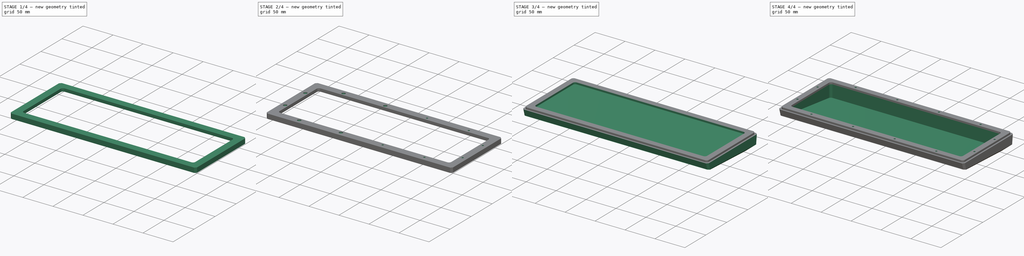
[diagram: build sequence overview — one tinted view per stage of 4, left to right]
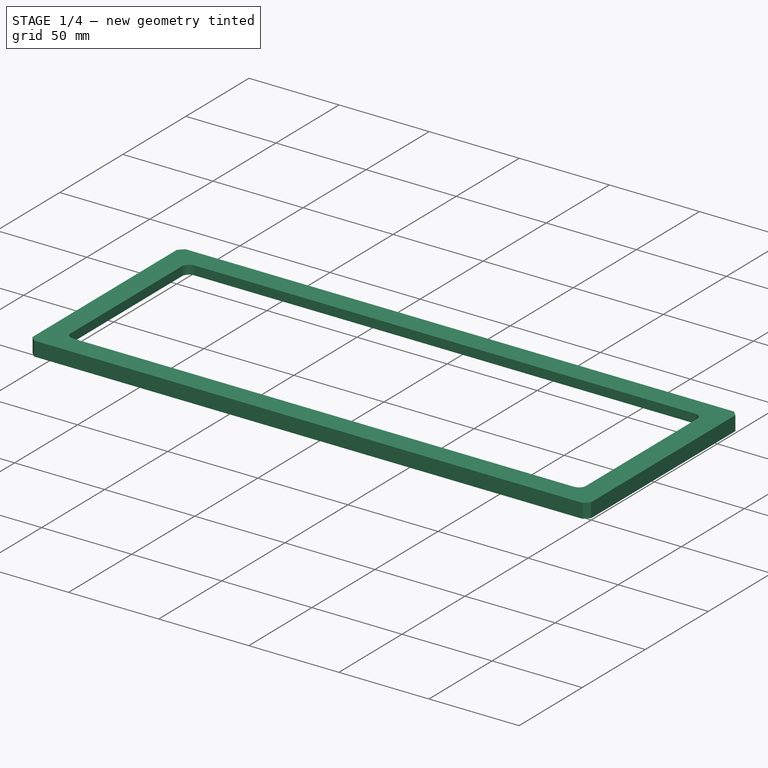
[diagram: stage 1 of 4 — iso view after this stage's code; geometry added in this stage tinted green]
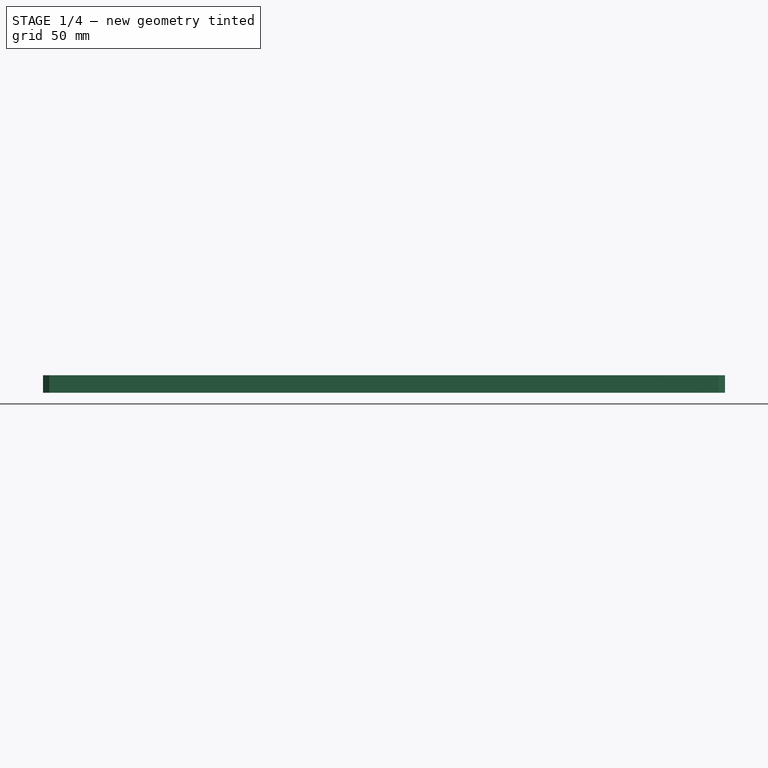
[diagram: stage 1 of 4 — front view after this stage's code; geometry added in this stage tinted green]
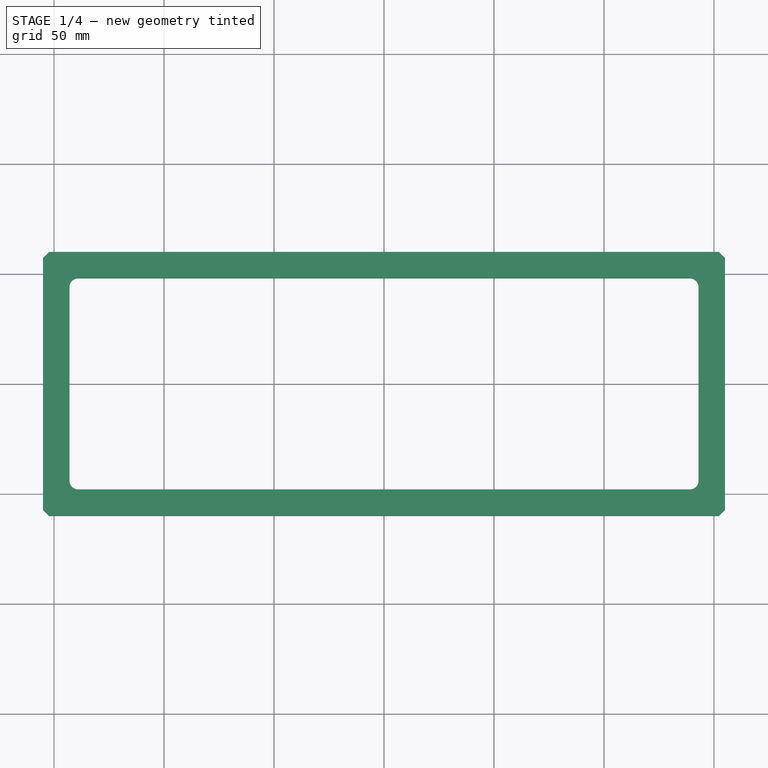
[diagram: stage 1 of 4 — top view after this stage's code; geometry added in this stage tinted green]
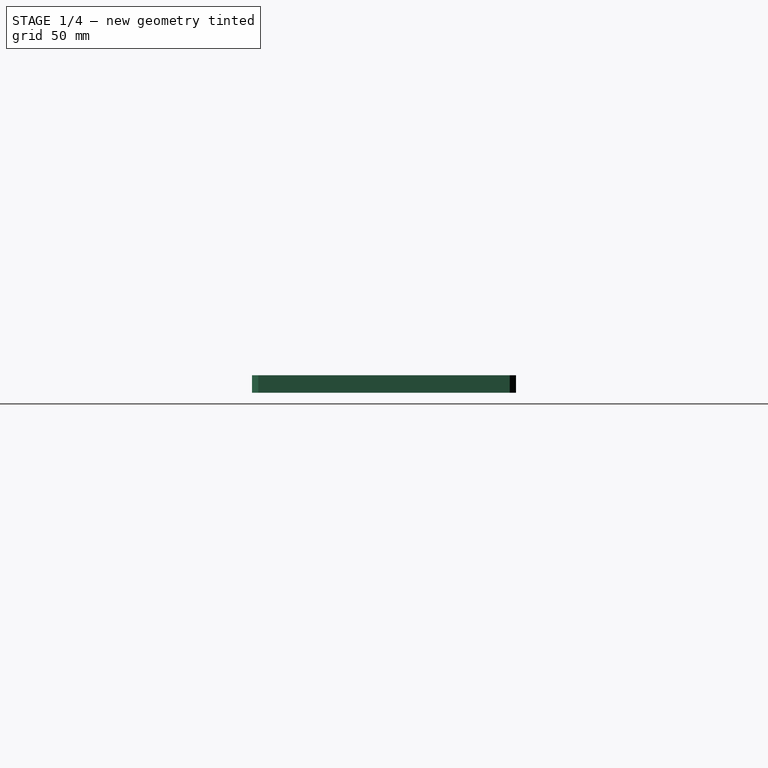
[diagram: stage 1 of 4 — right view after this stage's code; geometry added in this stage tinted green]
FCSTD DOCUMENT  (FreeCAD 0.20R29410 (Git))
Label: Keyboard_Assembly
License: All rights reserved
LicenseURL: http://en.wikipedia.org/wiki/All_rights_reserved
objects: Sketcher::SketchObject×11, PartDesign::Pocket×6, PartDesign::Mirrored×3, PartDesign::Pad×2, PartDesign::Body×2, PartDesign::SubShapeBinder×2, Spreadsheet::Sheet×1, PartDesign::AdditiveLoft×1
note: 36 computed .brp shape members not serialized (recipe doc carries the construction recipe); baked Part::Feature solids carry a one-line shape summary decoded from their .brp

FEATURE [Spreadsheet::Sheet] Spreadsheet  label="Parameters"
  cells = A1=CutoutWidth; B1(CutoutWidth)=286; A2=CutoutLength; B2(CutoutLength)=96; A3=TopEdgeThickness; B3(TopEdgeThickness)=12; A4=BaseTopWidth; B4(BaseWidth)==B1 + B3 * 2; A5=BaseTopLength; B5(BaseLength)==B2 + B3 * 2; A6=BaseHeightFront; B6(BaseHeightFront)=18; A7=BaseHeightRear; B7(BaseHeightRear)=34; A8=BaseOuterChamfer; B8(BaseOuterChamfer)=4; A9=BaseInnerFillet; B9(BaseInnerFillet)=4; A10=TopShellHeight; B10(TopShellHeight)=8; A11=WallThickness; B11(WallThickness)=2.5; A12=TopThickness; B12(TopThickness)=5; A13=ShellScrewDiameter; B13(ShellScrewDiameter)=3; A14=BaseBottomFrontDiff; B14(BaseBottomFrontDiff)=3; A15=BaseBottomRearDiff; B15(BaseBottomRearDiff)=1; A16=BaseBottomWidth; B16(BaseBottomWidth)==B4; A17=BaseBottomLength; B17(BaseBottomLength)==B5 - B14 - B15
FEATURE [Sketcher::SketchObject] Sketch
  FullyConstrained = true
  MapMode = 5
  Support = -> [XY_Plane]
  expr: Constraints[10] = <<Parameters>>.BaseWidth
  expr: Constraints[11] = <<Parameters>>.BaseLength
  expr: Constraints[29] = <<Parameters>>.BaseOuterChamfer
  sketch-geometry (13):
    g0: LineSegment StartX=-155 StartY=60 StartZ=0 EndX=-155 EndY=-60 EndZ=0
    g1: LineSegment StartX=-155 StartY=-60 StartZ=0 EndX=155 EndY=-60 EndZ=0
    g2: LineSegment StartX=155 StartY=-60 StartZ=0 EndX=155 EndY=60 EndZ=0
    g3: LineSegment StartX=155 StartY=60 StartZ=0 EndX=-155 EndY=60 EndZ=0
    g4: GeomPoint X=0 Y=0 Z=0
    g5: LineSegment StartX=-155 StartY=-57.1716 StartZ=0 EndX=-155 EndY=57.1716 EndZ=0
    g6: LineSegment StartX=-155 StartY=57.1716 StartZ=0 EndX=-152.172 EndY=60 EndZ=0
    g7: LineSegment StartX=-152.172 StartY=60 StartZ=0 EndX=152.172 EndY=60 EndZ=0
    g8: LineSegment StartX=152.172 StartY=60 StartZ=0 EndX=155 EndY=57.1716 EndZ=0
    g9: LineSegment StartX=155 StartY=57.1716 StartZ=0 EndX=155 EndY=-57.1716 EndZ=0
    g10: LineSegment StartX=155 StartY=-57.1716 StartZ=0 EndX=152.172 EndY=-60 EndZ=0
    g11: LineSegment StartX=152.172 StartY=-60 StartZ=0 EndX=-152.172 EndY=-60 EndZ=0
    g12: LineSegment StartX=-152.172 StartY=-60 StartZ=0 EndX=-155 EndY=-57.1716 EndZ=0
  constraints (30):
    c: Coincident(g0,g1)
    c: Coincident(g1,g2)
    c: Coincident(g2,g3)
    c: Coincident(g3,g0)
    c: Horizontal(g1)
    c: Horizontal(g3)
    c: Vertical(g0)
    c: Vertical(g2)
    c: Symmetric(g1,g0,g4)
    c: Coincident(g4,g-1)
    c: DistanceX(g3,g3) = 310
    c: DistanceY(g2,g2) = 120
    c: PointOnObject(g5,g0)
    c: Coincident(g5,g6)
    c: PointOnObject(g6,g3)
    c: Coincident(g6,g7)
    c: Coincident(g7,g8)
    c: Coincident(g8,g9)
    c: Coincident(g9,g10)
    c: Coincident(g10,g11)
    c: Coincident(g11,g12)
    c: Coincident(g12,g5)
    c: Symmetric(g10,g7,g-1)
    c: Symmetric(g6,g11,g-1)
    c: Symmetric(g5,g9,g-2)
    c: Symmetric(g8,g5,g-2)
    c: Angle(g7,g8) = 2.35619
    c: Symmetric(g7,g6,g-2)
    c: Symmetric(g9,g8,g-1)
    c: Distance(g8) = 4
FEATURE [PartDesign::Pad] Pad
  Direction = (0,0,1)
  Length = 8
  Length2 = 10
  Profile = -> Sketch
  ReferenceAxis = -> Sketch [N_Axis]
  Type = 0
  expr: Length = <<Parameters>>.TopShellHeight
FEATURE [Sketcher::SketchObject] Sketch001
  FullyConstrained = true
  MapMode = 5
  Placement = pos=(0,0,8) rot=(0,0,1;0rad)
  Support = -> [Pad]
  expr: Constraints[20] = <<Parameters>>.CutoutWidth
  expr: Constraints[21] = <<Parameters>>.CutoutLength
  expr: Constraints[22] = <<Parameters>>.BaseInnerFillet
  sketch-geometry (10):
    g0: ArcOfCircle CenterX=-139 CenterY=44 CenterZ=0 NormalX=0 NormalY=0 NormalZ=1 AngleXU=0 Radius=4 StartAngle=1.5708 EndAngle=3.14159
    g1: LineSegment StartX=-139 StartY=48 StartZ=0 EndX=139 EndY=48 EndZ=0
    g2: ArcOfCircle CenterX=139 CenterY=44 CenterZ=0 NormalX=0 NormalY=0 NormalZ=1 AngleXU=0 Radius=4 StartAngle=4.6e-13 EndAngle=1.5708
    g3: LineSegment StartX=143 StartY=44 StartZ=0 EndX=143 EndY=-44 EndZ=0
    g4: ArcOfCircle CenterX=139 CenterY=-44 CenterZ=0 NormalX=0 NormalY=0 NormalZ=1 AngleXU=0 Radius=4 StartAngle=4.71239 EndAngle=6.28319
    g5: LineSegment StartX=139 StartY=-48 StartZ=0 EndX=-139 EndY=-48 EndZ=0
    g6: ArcOfCircle CenterX=-139 CenterY=-44 CenterZ=0 NormalX=0 NormalY=0 NormalZ=1 AngleXU=0 Radius=4 StartAngle=3.14159 EndAngle=4.71239
    g7: LineSegment StartX=-143 StartY=-44 StartZ=0 EndX=-143 EndY=44 EndZ=0
    g8: GeomPoint X=-143 Y=48 Z=0
    g9: GeomPoint X=143 Y=-48 Z=0
  constraints (23):
    c: Tangent(g0,g1) = 1.5708
    c: Tangent(g1,g2) = 1.5708
    c: Tangent(g2,g3) = 1.5708
    c: Tangent(g3,g4) = 1.5708
    c: Tangent(g4,g5) = 1.5708
    c: Tangent(g5,g6) = 1.5708
    c: Tangent(g6,g7) = 1.5708
    c: Tangent(g7,g0) = 1.5708
    c: Horizontal(g1)
    c: Horizontal(g5)
    c: Vertical(g3)
    c: Vertical(g7)
    c: Equal(g0,g2)
    c: Equal(g2,g4)
    c: Equal(g4,g6)
    c: PointOnObject(g8,g1)
    c: PointOnObject(g8,g7)
    c: PointOnObject(g9,g3)
    c: PointOnObject(g9,g5)
    c: Symmetric(g6,g2,g-1)
    c: DistanceX(g0,g2) = 286
    c: DistanceY(g4,g1) = 96
    c: Radius(g2) = 4
FEATURE [PartDesign::Pocket] Pocket
  BaseFeature = -> Pad
  Direction = (0,0,-1)
  Length = 5
  Length2 = 5
  Profile = -> Sketch001
  ReferenceAxis = -> Sketch001 [N_Axis]
  Type = 1
FEATURE [Sketcher::SketchObject] Sketch002
  FullyConstrained = true
  MapMode = 5
  Placement = pos=(0,0,0) rot=(1,0,0;3.14159rad)
  Support = -> [Pocket]
  expr: Constraints[20] = <<Parameters>>.BaseInnerFillet
  expr: Constraints[21] = <<Parameters>>.BaseLength - <<Parameters>>.WallThickness * 2
  expr: Constraints[22] = <<Parameters>>.BaseWidth - <<Parameters>>.WallThickness * 2
  sketch-geometry (10):
    g0: ArcOfCircle CenterX=-148.5 CenterY=53.5 CenterZ=0 NormalX=0 NormalY=0 NormalZ=1 AngleXU=0 Radius=4 StartAngle=1.5708 EndAngle=3.14159
    g1: LineSegment StartX=-148.5 StartY=57.5 StartZ=0 EndX=148.5 EndY=57.5 EndZ=0
    g2: ArcOfCircle CenterX=148.5 CenterY=53.5 CenterZ=0 NormalX=0 NormalY=0 NormalZ=1 AngleXU=0 Radius=4 StartAngle=1.867e-12 EndAngle=1.5708
    g3: LineSegment StartX=152.5 StartY=53.5 StartZ=0 EndX=152.5 EndY=-53.5 EndZ=0
    g4: ArcOfCircle CenterX=148.5 CenterY=-53.5 CenterZ=0 NormalX=0 NormalY=0 NormalZ=1 AngleXU=0 Radius=4 StartAngle=4.71239 EndAngle=6.28319
    g5: LineSegment StartX=148.5 StartY=-57.5 StartZ=0 EndX=-148.5 EndY=-57.5 EndZ=0
    g6: ArcOfCircle CenterX=-148.5 CenterY=-53.5 CenterZ=0 NormalX=0 NormalY=0 NormalZ=1 AngleXU=0 Radius=4 StartAngle=3.14159 EndAngle=4.71239
    g7: LineSegment StartX=-152.5 StartY=-53.5 StartZ=0 EndX=-152.5 EndY=53.5 EndZ=0
    g8: GeomPoint X=-152.5 Y=57.5 Z=0
    g9: GeomPoint X=152.5 Y=-57.5 Z=0
  constraints (23):
    c: Tangent(g0,g1) = 1.5708
    c: Tangent(g1,g2) = 1.5708
    c: Tangent(g2,g3) = 1.5708
    c: Tangent(g3,g4) = 1.5708
    c: Tangent(g4,g5) = 1.5708
    c: Tangent(g5,g6) = 1.5708
    c: Tangent(g6,g7) = 1.5708
    c: Tangent(g7,g0) = 1.5708
    c: Horizontal(g1)
    c: Horizontal(g5)
    c: Vertical(g3)
    c: Vertical(g7)
    c: Equal(g0,g2)
    c: Equal(g2,g4)
    c: Equal(g4,g6)
    c: PointOnObject(g8,g1)
    c: PointOnObject(g8,g7)
    c: PointOnObject(g9,g3)
    c: PointOnObject(g9,g5)
    c: Symmetric(g2,g6,g-1)
    c: Radius(g0) = 4
    c: DistanceY(g5,g0) = 115
    c: DistanceX(g0,g2) = 305
FEATURE [PartDesign::Pocket] Pocket001
  BaseFeature = -> Pocket
  Direction = (0,0,1)
  Length = 3
  Length2 = 5
  Profile = -> Sketch002
  ReferenceAxis = -> Sketch002 [N_Axis]
  Type = 0
  expr: Length = <<Parameters>>.TopShellHeight - <<Parameters>>.TopThickness
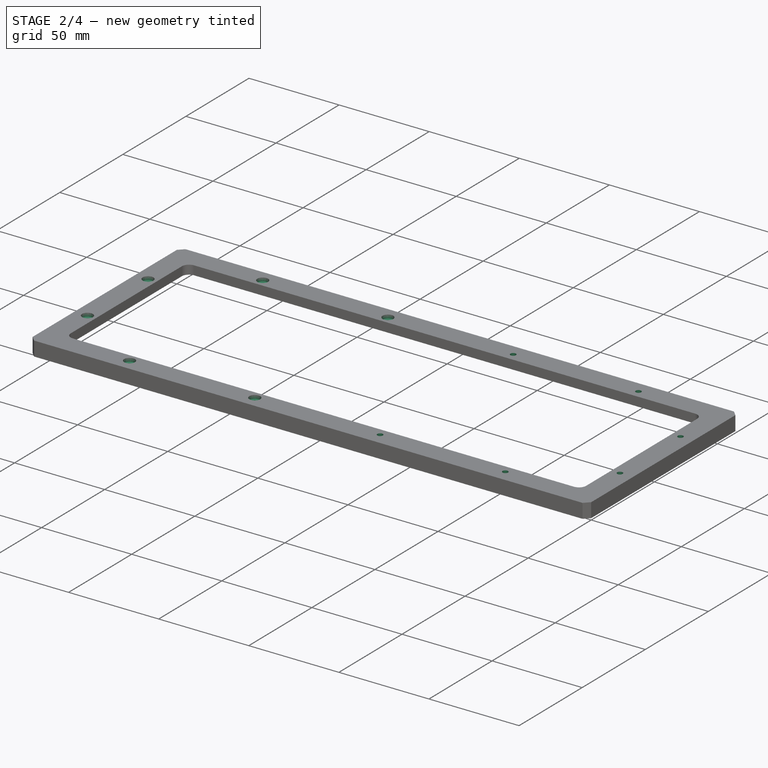
[diagram: stage 2 of 4 — iso view after this stage's code; geometry added in this stage tinted green]
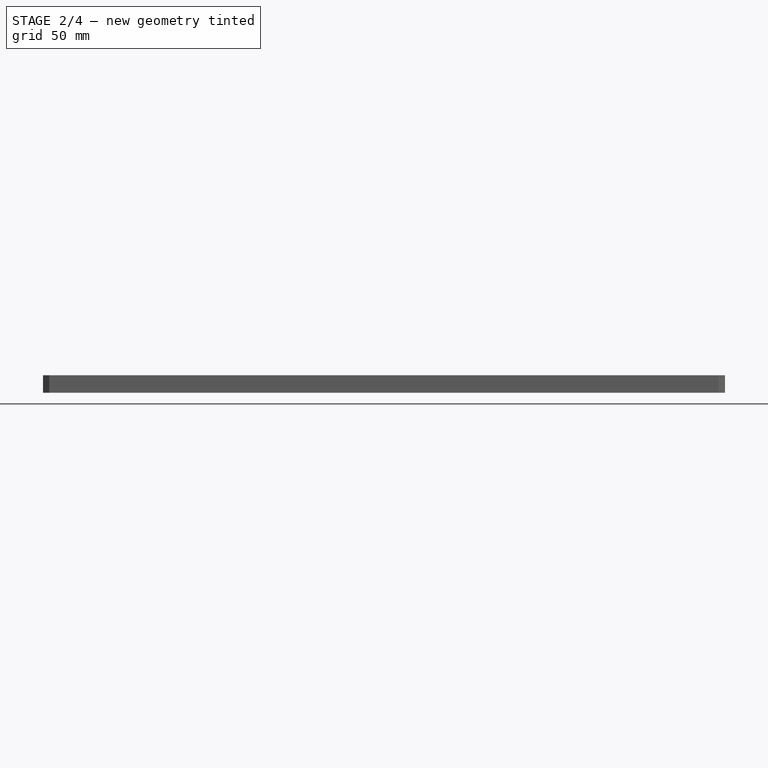
[diagram: stage 2 of 4 — front view after this stage's code; geometry added in this stage tinted green]
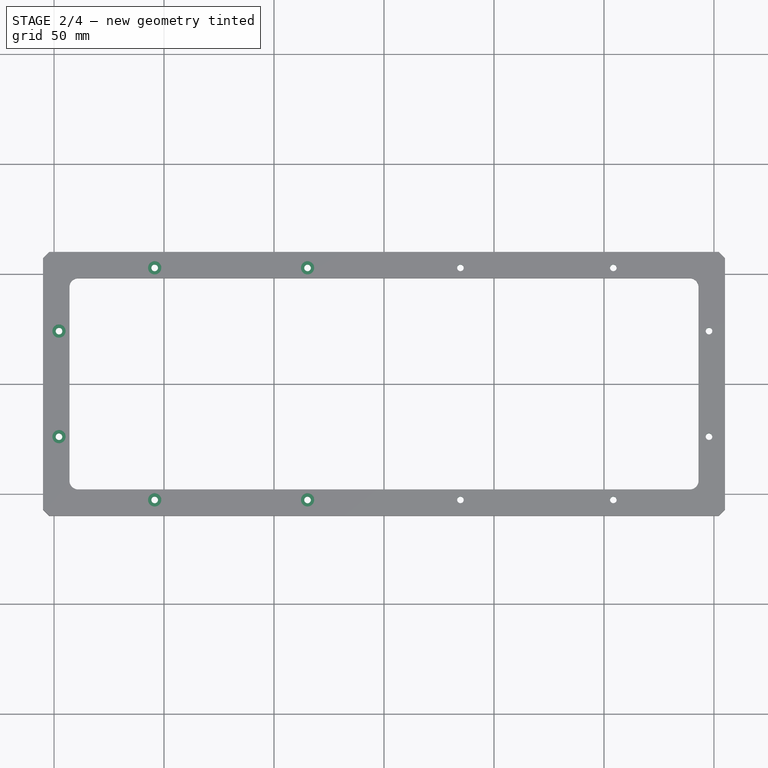
[diagram: stage 2 of 4 — top view after this stage's code; geometry added in this stage tinted green]
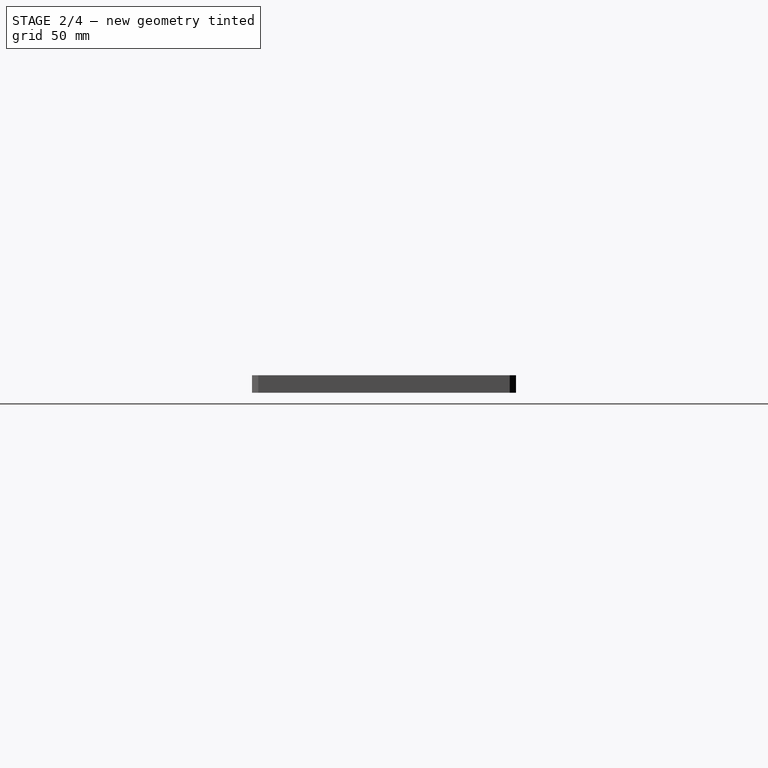
[diagram: stage 2 of 4 — right view after this stage's code; geometry added in this stage tinted green]
FEATURE [Sketcher::SketchObject] Sketch003
  ExternalGeometry = -> [Pocket001]
  FullyConstrained = true
  MapMode = 5
  Placement = pos=(0,0,3) rot=(1,0,0;3.14159rad)
  Support = -> [Pocket001]
  expr: Constraints[2] = <<Parameters>>.ShellScrewDiameter
  sketch-geometry (15):
    g0: Circle CenterX=-147.75 CenterY=24 CenterZ=0 NormalX=0 NormalY=0 NormalZ=1 AngleXU=0 Radius=1.5
    g1: Circle CenterX=-104.25 CenterY=52.75 CenterZ=0 NormalX=0 NormalY=0 NormalZ=1 AngleXU=0 Radius=1.5
    g2: Circle CenterX=-34.75 CenterY=52.75 CenterZ=0 NormalX=0 NormalY=0 NormalZ=1 AngleXU=0 Radius=1.5
    g3: GeomPoint X=-152.5 Y=0 Z=0
    g4: GeomPoint X=-143 Y=0 Z=0
    g5: GeomPoint X=-147.75 Y=0 Z=0
    g6: GeomPoint X=-147.75 Y=48 Z=0
    g7: GeomPoint X=-139 Y=52.75 Z=0
    g8: GeomPoint X=0 Y=48 Z=0
    g9: GeomPoint X=0 Y=57.5 Z=0
    g10: GeomPoint X=0 Y=52.75 Z=0
    g11: GeomPoint X=-69.5 Y=52.75 Z=0
    g12: Circle CenterX=-147.75 CenterY=-24 CenterZ=0 NormalX=0 NormalY=0 NormalZ=1 AngleXU=0 Radius=1.5
    g13: Circle CenterX=-104.25 CenterY=-52.75 CenterZ=0 NormalX=0 NormalY=0 NormalZ=1 AngleXU=0 Radius=1.5
    g14: Circle CenterX=-34.75 CenterY=-52.75 CenterZ=0 NormalX=0 NormalY=0 NormalZ=1 AngleXU=0 Radius=1.5
  constraints (27):
    c: Equal(g2,g1)
    c: Equal(g2,g0)
    c: Diameter(g2) = 3
    c: PointOnObject(g3,g-4)
    c: PointOnObject(g4,g-3)
    c: PointOnObject(g4,g-1)
    c: PointOnObject(g3,g-1)
    c: Symmetric(g4,g3,g5)
    c: Vertical(g0,g5)
    c: Horizontal(g-5,g6)
    c: Symmetric(g5,g6,g0)
    c: PointOnObject(g8,g-5)
    c: PointOnObject(g9,g-6)
    c: PointOnObject(g10,g-2)
    c: PointOnObject(g9,g-2)
    c: Symmetric(g9,g8,g10)
    c: Vertical(g7,g-5)
    c: Horizontal(g7,g10)
    c: Symmetric(g7,g10,g11)
    c: Symmetric(g7,g11,g1)
    c: Symmetric(g10,g11,g2)
    c: Equal(g14,g13)
    c: Equal(g14,g12)
    c: Equal(g12,g0)
    c: Symmetric(g12,g0,g-1)
    c: Symmetric(g13,g1,g-1)
    c: Symmetric(g14,g2,g-1)
FEATURE [PartDesign::Pocket] Pocket002
  BaseFeature = -> Pocket001
  Direction = (0,0,1)
  Length = 5
  Length2 = 5
  Profile = -> Sketch003
  ReferenceAxis = -> Sketch003 [N_Axis]
  Type = 1
FEATURE [PartDesign::Mirrored] Mirrored
  BaseFeature = -> Pocket002
  MirrorPlane = -> Sketch003 [V_Axis]
  Originals = -> [Pocket002]
FEATURE [Sketcher::SketchObject] Sketch004
  ExternalGeometry = -> [Mirrored]
  FullyConstrained = true
  MapMode = 5
  Placement = pos=(0,0,8) rot=(0,0,1;0rad)
  Support = -> [Mirrored]
  expr: Constraints[11] = <<Parameters>>.ShellScrewDiameter + 3
  sketch-geometry (6):
    g0: Circle CenterX=-104.25 CenterY=52.75 CenterZ=0 NormalX=0 NormalY=0 NormalZ=1 AngleXU=0 Radius=3
    g1: Circle CenterX=-34.75 CenterY=52.75 CenterZ=0 NormalX=0 NormalY=0 NormalZ=1 AngleXU=0 Radius=3
    g2: Circle CenterX=-147.75 CenterY=24 CenterZ=0 NormalX=0 NormalY=0 NormalZ=1 AngleXU=0 Radius=3
    g3: Circle CenterX=-147.75 CenterY=-24 CenterZ=0 NormalX=0 NormalY=0 NormalZ=1 AngleXU=0 Radius=3
    g4: Circle CenterX=-104.25 CenterY=-52.75 CenterZ=0 NormalX=0 NormalY=0 NormalZ=1 AngleXU=0 Radius=3
    g5: Circle CenterX=-34.75 CenterY=-52.75 CenterZ=0 NormalX=0 NormalY=0 NormalZ=1 AngleXU=0 Radius=3
  constraints (9):
    c: Coincident(g0,g-3)
    c: Coincident(g1,g-4)
    c: Coincident(g2,g-5)
    c: Coincident(g3,g-6)
    c: Coincident(g4,g-7)
    c: Coincident(g5,g-8)
    c: Equal(g1,g0)
    c: Equal(g1, g2-g5) x4
    c: Diameter(g1) = 6
FEATURE [PartDesign::Pocket] Pocket003
  BaseFeature = -> Mirrored
  Direction = (0,0,-1)
  Length = 2
  Length2 = 5
  Profile = -> Sketch004
  ReferenceAxis = -> Sketch004 [N_Axis]
  Type = 0
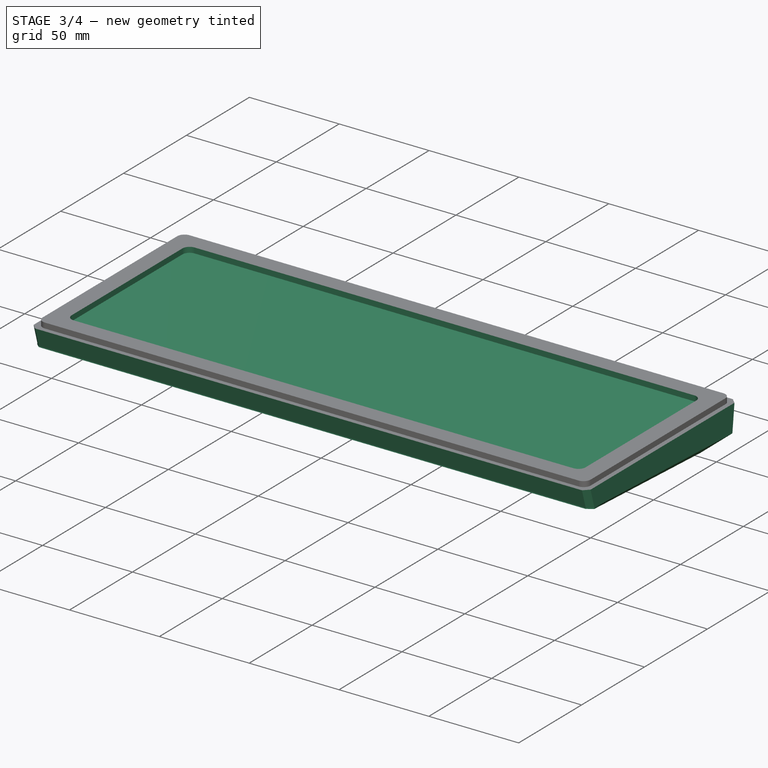
[diagram: stage 3 of 4 — iso view after this stage's code; geometry added in this stage tinted green]
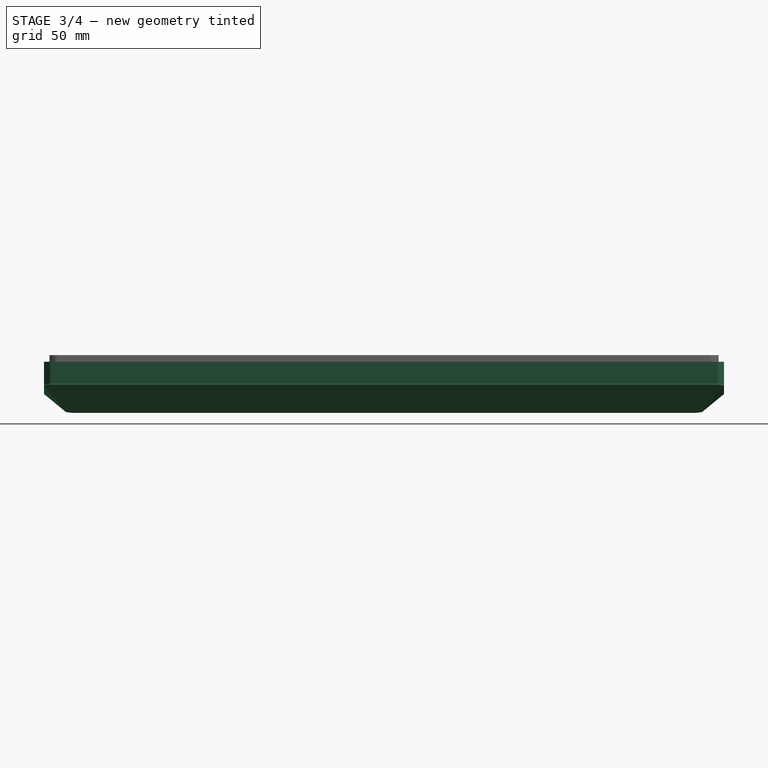
[diagram: stage 3 of 4 — front view after this stage's code; geometry added in this stage tinted green]
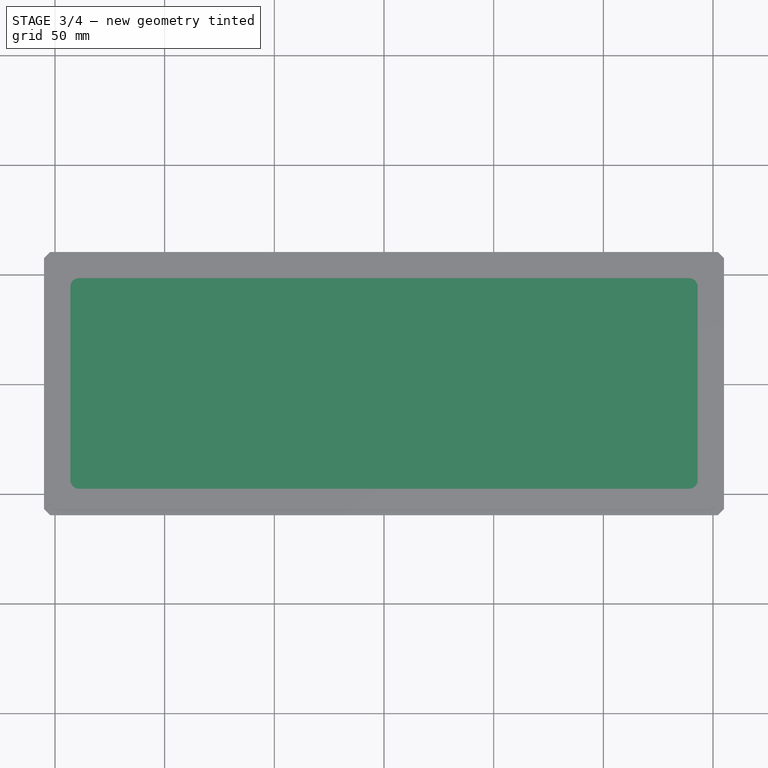
[diagram: stage 3 of 4 — top view after this stage's code; geometry added in this stage tinted green]
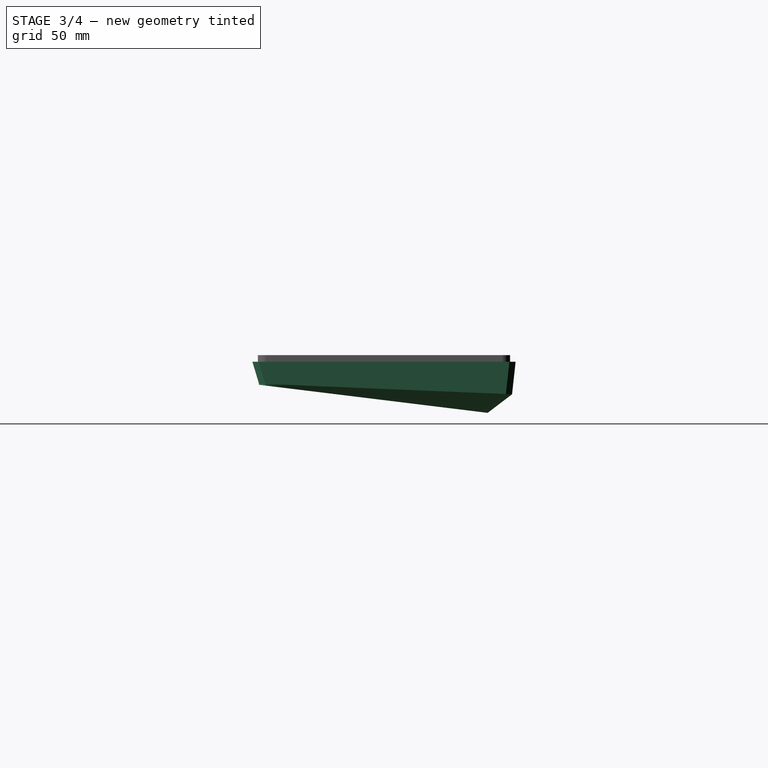
[diagram: stage 3 of 4 — right view after this stage's code; geometry added in this stage tinted green]
FEATURE [PartDesign::Mirrored] Mirrored001
  BaseFeature = -> Pocket003
  MirrorPlane = -> Sketch004 [V_Axis]
  Originals = -> [Pocket003]
FEATURE [PartDesign::Body] Body  label="TopShell"
  Group = -> [Sketch,Pad,Sketch001,Pocket,Sketch002,Pocket001,Sketch003,Pocket002,Mirrored,Sketch004,Pocket003,Mirrored001]
  Origin = -> Origin
  Tip = -> Mirrored001
FEATURE [PartDesign::SubShapeBinder] Binder  label="ScrewsBinder"
  BindCopyOnChange = 0
  BindMode = 0
  ClaimChildren = false
  Context = -> Body001 [Binder.]
  Fuse = false
  MakeFace = true
  OffsetFill = false
  OffsetIntersection = false
  OffsetJoinType = 0
  OffsetOpenResult = false
  PartialLoad = false
  Relative = true
  Support = -> [Body[Mirrored001.Face39]]
  _Version = 2
FEATURE [PartDesign::SubShapeBinder] Binder001  label="WallBinder"
  BindCopyOnChange = 0
  BindMode = 0
  ClaimChildren = false
  Context = -> Body001 [Binder001.]
  Fuse = false
  MakeFace = true
  OffsetFill = false
  OffsetIntersection = false
  OffsetJoinType = 0
  OffsetOpenResult = false
  PartialLoad = false
  Relative = true
  Support = -> [Body[Mirrored001.Face4]]
  _Version = 2
FEATURE [Sketcher::SketchObject] Sketch005  label="TopOuterWall"
  ExternalGeometry = -> [Binder001]
  FullyConstrained = true
  MapMode = 5
  Support = -> [XY_Plane001]
  sketch-geometry (8):
    g0: LineSegment StartX=-155 StartY=57.1716 StartZ=0 EndX=-152.172 EndY=60 EndZ=0
    g1: LineSegment StartX=-152.172 StartY=60 StartZ=0 EndX=152.172 EndY=60 EndZ=0
    g2: LineSegment StartX=152.172 StartY=60 StartZ=0 EndX=155 EndY=57.1716 EndZ=0
    g3: LineSegment StartX=155 StartY=57.1716 StartZ=0 EndX=155 EndY=-57.1716 EndZ=0
    g4: LineSegment StartX=155 StartY=-57.1716 StartZ=0 EndX=152.172 EndY=-60 EndZ=0
    g5: LineSegment StartX=152.172 StartY=-60 StartZ=0 EndX=-152.172 EndY=-60 EndZ=0
    g6: LineSegment StartX=-152.172 StartY=-60 StartZ=0 EndX=-155 EndY=-57.1716 EndZ=0
    g7: LineSegment StartX=-155 StartY=-57.1716 StartZ=0 EndX=-155 EndY=57.1716 EndZ=0
  constraints (16):
    c: Coincident(g-3,g0)
    c: Coincident(g0,g-4)
    c: Coincident(g0,g1)
    c: Coincident(g1,g-4)
    c: Coincident(g1,g2)
    c: Coincident(g2,g-5)
    c: Coincident(g2,g3)
    c: Coincident(g3,g-5)
    c: Coincident(g3,g4)
    c: Coincident(g4,g-6)
    c: Coincident(g4,g5)
    c: Coincident(g5,g-6)
    c: Coincident(g5,g6)
    c: Coincident(g6,g-3)
    c: Coincident(g6,g7)
    c: Coincident(g7,g0)
FEATURE [Sketcher::SketchObject] Sketch006
  AttachmentOffset = pos=(0,-57,-10) rot=(1,0,0;-0.041888rad)
  ExternalGeometry = -> [Sketch005]
  FullyConstrained = true
  MapMode = 5
  Placement = pos=(0,-57,-10) rot=(1,0,0;6.2413rad)
  Support = -> [XY_Plane001]
  expr: .AttachmentOffset.Base.y = -<<Parameters>>.BaseLength / 2 + <<Parameters>>.BaseBottomFrontDiff
  expr: Constraints[17] = <<Parameters>>.BaseBottomRearDiff
  sketch-geometry (8):
    g0: LineSegment StartX=-155 StartY=112.65 StartZ=0 EndX=-155 EndY=2.82843 EndZ=0
    g1: LineSegment StartX=-155 StartY=2.82843 StartZ=0 EndX=-152.172 EndY=0 EndZ=0
    g2: LineSegment StartX=-152.172 StartY=0 StartZ=0 EndX=152.172 EndY=0 EndZ=0
    g3: LineSegment StartX=152.172 StartY=0 StartZ=0 EndX=155 EndY=2.82843 EndZ=0
    g4: LineSegment StartX=155 StartY=2.82843 StartZ=0 EndX=155 EndY=112.65 EndZ=0
    g5: LineSegment StartX=155 StartY=112.65 StartZ=0 EndX=152.172 EndY=115.479 EndZ=0
    g6: LineSegment StartX=152.172 StartY=115.479 StartZ=0 EndX=-152.172 EndY=115.479 EndZ=0
    g7: LineSegment StartX=-152.172 StartY=115.479 StartZ=0 EndX=-155 EndY=112.65 EndZ=0
  constraints (22):
    c: Vertical(g0)
    c: Coincident(g0,g1)
    c: Coincident(g1,g2)
    c: Horizontal(g2)
    c: Coincident(g2,g3)
    c: Coincident(g3,g4)
    c: Coincident(g4,g5)
    c: Coincident(g5,g6)
    c: Horizontal(g6)
    c: Coincident(g6,g7)
    c: Coincident(g7,g0)
    c: PointOnObject(g1,g-1)
    c: Vertical(g1,g6)
    c: Vertical(g2,g5)
    c: Vertical(g6,g-5)
    c: Vertical(g5,g-5)
    c: PointOnObject(g0,g-4)
    c: DistanceY(g6,g-5) = 1
    c: Symmetric(g4,g0,g-2)
    c: Symmetric(g0,g3,g-2)
    c: Angle(g6,g5) = 2.35619
    c: Angle(g2,g1) = 2.35619
FEATURE [Sketcher::SketchObject] Sketch007
  AttachmentOffset = pos=(0,-57,-10.5) rot=(1,0,0;-0.122173rad)
  ExternalGeometry = -> [Sketch006]
  FullyConstrained = true
  MapMode = 5
  Placement = pos=(0,-57,-10.5) rot=(1,0,0;6.16101rad)
  Support = -> [XY_Plane001]
  sketch-geometry (8):
    g0: LineSegment StartX=-155 StartY=2.75838 StartZ=0 EndX=-152.172 EndY=-0.0609347 EndZ=0
    g1: LineSegment StartX=-152.172 StartY=-0.0609347 StartZ=0 EndX=152.172 EndY=-0.0609347 EndZ=0
    g2: LineSegment StartX=152.172 StartY=-0.0609347 StartZ=0 EndX=155 EndY=2.75838 EndZ=0
    g3: LineSegment StartX=155 StartY=2.75838 StartZ=0 EndX=145 EndY=102.226 EndZ=0
    g4: LineSegment StartX=145 StartY=102.226 StartZ=0 EndX=142.172 EndY=105.046 EndZ=0
    g5: LineSegment StartX=142.172 StartY=105.046 StartZ=0 EndX=-142.172 EndY=105.046 EndZ=0
    g6: LineSegment StartX=-142.172 StartY=105.046 StartZ=0 EndX=-145 EndY=102.226 EndZ=0
    g7: LineSegment StartX=-145 StartY=102.226 StartZ=0 EndX=-155 EndY=2.75838 EndZ=0
  constraints (18):
    c: Coincident(g-4,g0)
    c: Coincident(g0,g-3)
    c: Coincident(g0,g1)
    c: Coincident(g1,g-3)
    c: Coincident(g1,g2)
    c: Coincident(g2,g-6)
    c: Coincident(g2,g3)
    c: Coincident(g3,g4)
    c: Coincident(g4,g5)
    c: Coincident(g5,g6)
    c: Coincident(g6,g7)
    c: Coincident(g7,g0)
    c: DistanceY(g6,g-4) = 10
    c: DistanceX(g-4,g6) = 10
    c: DistanceX(g-5,g5) = 10
    c: DistanceY(g5,g-5) = 10
    c: Symmetric(g6,g3,g-2)
    c: Symmetric(g4,g5,g-2)
FEATURE [PartDesign::AdditiveLoft] AdditiveLoft
  Closed = false
  Profile = -> Sketch005
  Ruled = true
  Sections = -> [Sketch006,Sketch007]
FEATURE [Sketcher::SketchObject] Sketch008
  ExternalGeometry = -> [Binder]
  FullyConstrained = false
  MapMode = 5
  Support = -> [AdditiveLoft]
  expr: Constraints[18] = <<Parameters>>.BaseInnerFillet
  sketch-geometry (20):
    g0: ArcOfCircle CenterX=-148.5 CenterY=53.5 CenterZ=0 NormalX=0 NormalY=0 NormalZ=1 AngleXU=0 Radius=4 StartAngle=1.5708 EndAngle=3.14159
    g1: LineSegment StartX=-148.5 StartY=57.5 StartZ=0 EndX=148.5 EndY=57.5 EndZ=0
    g2: ArcOfCircle CenterX=148.5 CenterY=53.5 CenterZ=0 NormalX=0 NormalY=0 NormalZ=1 AngleXU=0 Radius=4 StartAngle=4e-16 EndAngle=1.5708
    g3: LineSegment StartX=152.5 StartY=53.5 StartZ=0 EndX=152.5 EndY=-53.5 EndZ=0
    g4: ArcOfCircle CenterX=148.5 CenterY=-53.5 CenterZ=0 NormalX=0 NormalY=0 NormalZ=1 AngleXU=0 Radius=4 StartAngle=4.71239 EndAngle=6.28319
    g5: LineSegment StartX=148.5 StartY=-57.5 StartZ=0 EndX=-148.5 EndY=-57.5 EndZ=0
    g6: ArcOfCircle CenterX=-148.5 CenterY=-53.5 CenterZ=0 NormalX=0 NormalY=0 NormalZ=1 AngleXU=0 Radius=4 StartAngle=3.14159 EndAngle=4.71239
    g7: LineSegment StartX=-152.5 StartY=-53.5 StartZ=0 EndX=-152.5 EndY=53.5 EndZ=0
    g8: GeomPoint X=-152.5 Y=57.5 Z=0
    g9: GeomPoint X=152.5 Y=-57.5 Z=0
    g10: ArcOfCircle CenterX=-139 CenterY=44 CenterZ=0 NormalX=0 NormalY=0 NormalZ=1 AngleXU=0 Radius=4 StartAngle=1.5708 EndAngle=3.14159
    g11: LineSegment StartX=-139 StartY=48 StartZ=0 EndX=139 EndY=48 EndZ=0
    g12: ArcOfCircle CenterX=139 CenterY=44 CenterZ=0 NormalX=0 NormalY=0 NormalZ=1 AngleXU=0 Radius=4 StartAngle=-9e-16 EndAngle=1.5708
    g13: LineSegment StartX=143 StartY=44 StartZ=0 EndX=143 EndY=-44 EndZ=0
    g14: ArcOfCircle CenterX=139 CenterY=-44 CenterZ=0 NormalX=0 NormalY=0 NormalZ=1 AngleXU=0 Radius=4 StartAngle=4.71239 EndAngle=6.28319
    g15: LineSegment StartX=139 StartY=-48 StartZ=0 EndX=-139 EndY=-48 EndZ=0
    g16: ArcOfCircle CenterX=-139 CenterY=-44 CenterZ=0 NormalX=0 NormalY=0 NormalZ=1 AngleXU=0 Radius=4 StartAngle=3.14159 EndAngle=4.71239
    g17: LineSegment StartX=-143 StartY=-44 StartZ=0 EndX=-143 EndY=44 EndZ=0
    g18: GeomPoint X=-143 Y=48 Z=0
    g19: GeomPoint X=143 Y=-48 Z=0
  constraints (42):
    c: Tangent(g0,g1) = 1.5708
    c: Tangent(g1,g2) = 1.5708
    c: Tangent(g2,g3) = 1.5708
    c: Tangent(g3,g4) = 1.5708
    c: Tangent(g4,g5) = 1.5708
    c: Tangent(g5,g6) = 1.5708
    c: Tangent(g6,g7) = 1.5708
    c: Tangent(g7,g0) = 1.5708
    c: Horizontal(g1)
    c: Horizontal(g5)
    c: Vertical(g3)
    c: Vertical(g7)
    c: Equal(g0,g2)
    c: Equal(g2,g4)
    c: Equal(g4,g6)
    c: PointOnObject(g9,g3)
    c: PointOnObject(g9,g5)
    c: Symmetric(g0,g4,g-1)
    c: Radius(g0) = 4
    c: Coincident(g0,g-4)
    c: Tangent(g10,g11) = 1.5708
    c: Tangent(g11,g12) = 1.5708
    c: Tangent(g12,g13) = 1.5708
    c: Tangent(g13,g14) = 1.5708
    c: Tangent(g14,g15) = 1.5708
    c: Tangent(g15,g16) = 1.5708
    c: Tangent(g16,g17) = 1.5708
    c: Tangent(g17,g10) = 1.5708
    c: Horizontal(g11)
    c: Horizontal(g15)
    c: Vertical(g13)
    c: Vertical(g17)
    c: Equal(g10,g12)
    c: Equal(g12,g14)
    c: Equal(g14,g16)
    c: PointOnObject(g18,g11)
    c: PointOnObject(g18,g17)
    c: PointOnObject(g19,g13)
    c: PointOnObject(g19,g15)
    c: Equal(g10,g0)
    c: Symmetric(g16,g12,g-1)
    c: Coincident(g10,g-8)
FEATURE [PartDesign::Pad] Pad001
  BaseFeature = -> AdditiveLoft
  Direction = (0,0,1)
  Length = 3
  Length2 = 10
  Profile = -> Sketch008
  ReferenceAxis = -> Sketch008 [N_Axis]
  Type = 0
  expr: Length = <<Parameters>>.TopShellHeight - <<Parameters>>.TopThickness
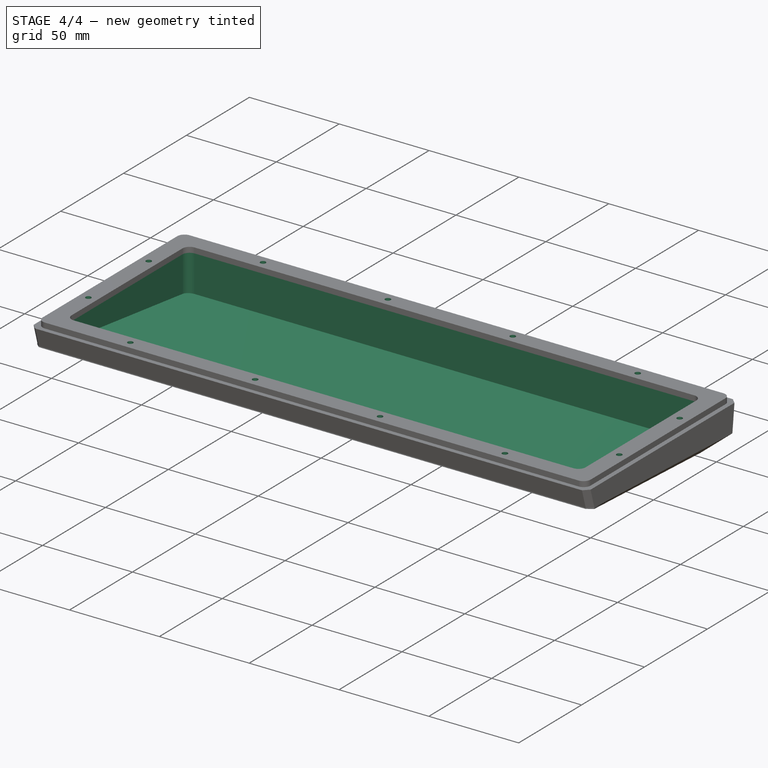
[diagram: stage 4 of 4 — iso view after this stage's code; geometry added in this stage tinted green]
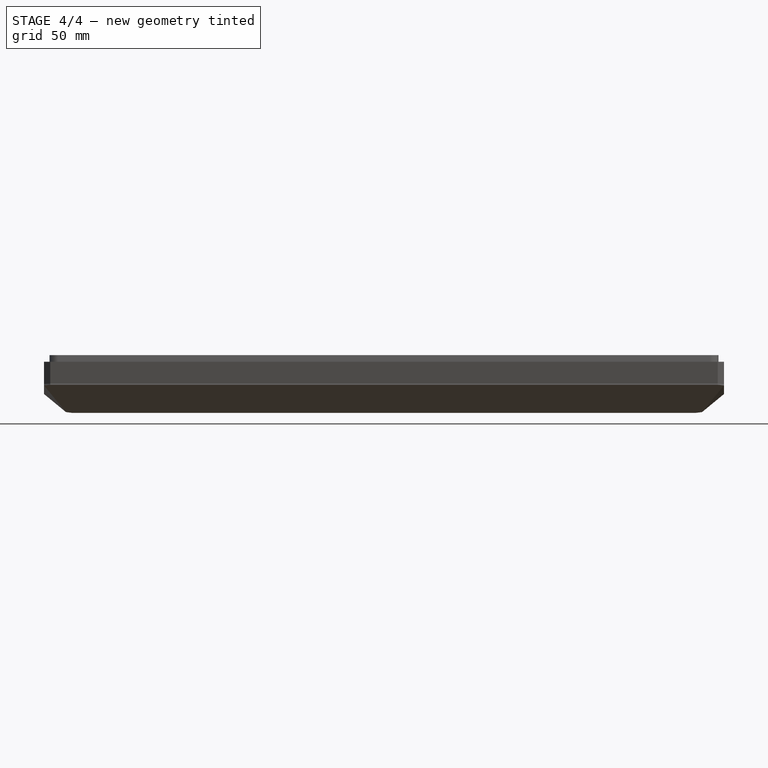
[diagram: stage 4 of 4 — front view after this stage's code; geometry added in this stage tinted green]
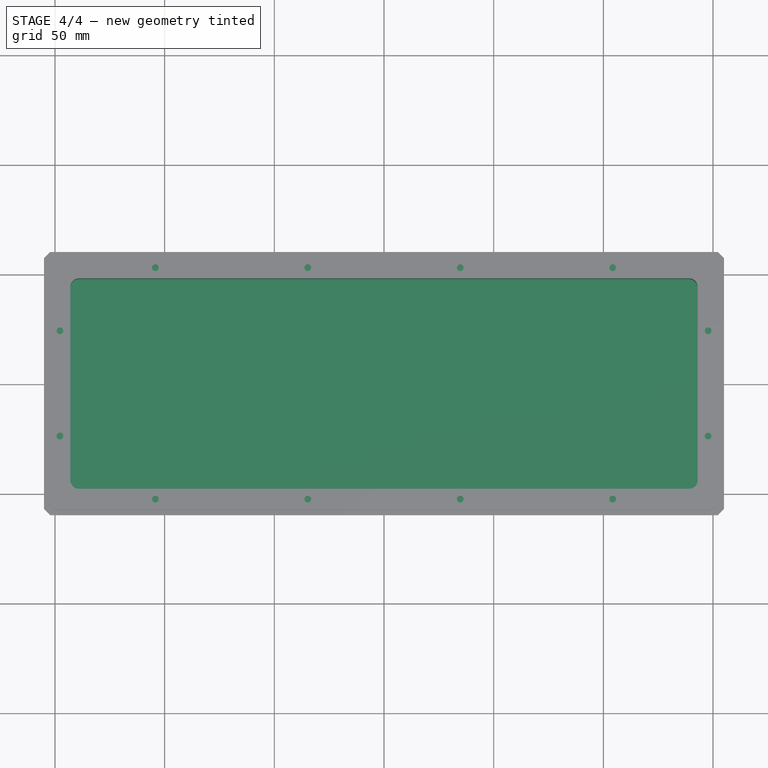
[diagram: stage 4 of 4 — top view after this stage's code; geometry added in this stage tinted green]
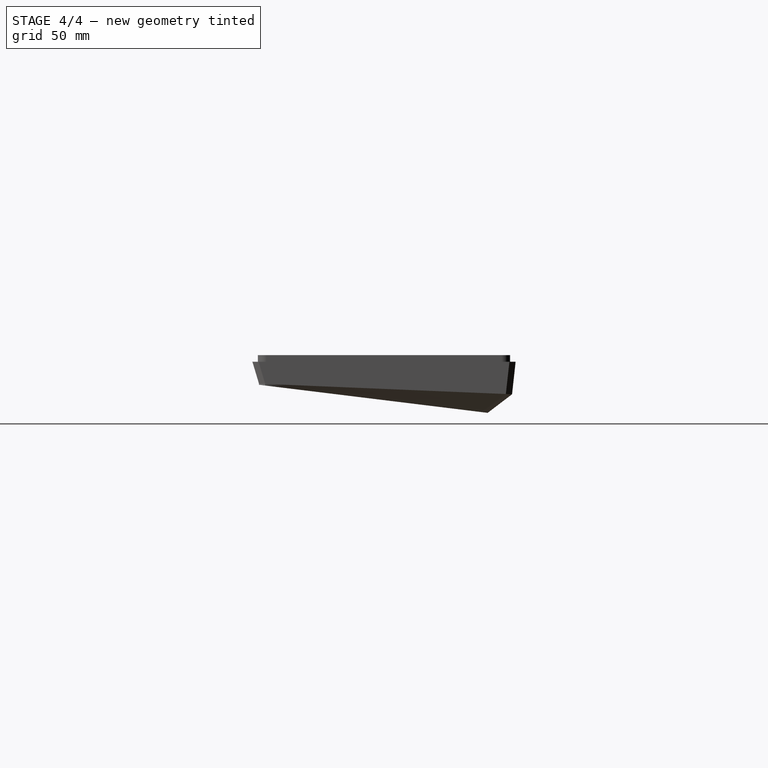
[diagram: stage 4 of 4 — right view after this stage's code; geometry added in this stage tinted green]
FEATURE [Sketcher::SketchObject] Sketch009
  ExternalGeometry = -> [Binder]
  FullyConstrained = true
  MapMode = 5
  Placement = pos=(0,0,3) rot=(0,0,1;0rad)
  Support = -> [Pad001]
  sketch-geometry (6):
    g0: Circle CenterX=-104.25 CenterY=52.75 CenterZ=0 NormalX=0 NormalY=0 NormalZ=1 AngleXU=0 Radius=1.5
    g1: Circle CenterX=-34.75 CenterY=52.75 CenterZ=0 NormalX=0 NormalY=0 NormalZ=1 AngleXU=0 Radius=1.5
    g2: Circle CenterX=-147.75 CenterY=24 CenterZ=0 NormalX=0 NormalY=0 NormalZ=1 AngleXU=0 Radius=1.5
    g3: Circle CenterX=-147.75 CenterY=-24 CenterZ=0 NormalX=0 NormalY=0 NormalZ=1 AngleXU=0 Radius=1.5
    g4: Circle CenterX=-104.25 CenterY=-52.75 CenterZ=0 NormalX=0 NormalY=0 NormalZ=1 AngleXU=0 Radius=1.5
    g5: Circle CenterX=-34.75 CenterY=-52.75 CenterZ=0 NormalX=0 NormalY=0 NormalZ=1 AngleXU=0 Radius=1.5
  constraints (12):
    c: Coincident(g0,g-4)
    c: Coincident(g1,g-5)
    c: Coincident(g2,g-3)
    c: Coincident(g3,g-6)
    c: Coincident(g4,g-7)
    c: Coincident(g5,g-8)
    c: Equal(g1,g0)
    c: Equal(g0,g2)
    c: Equal(g2,g3)
    c: Equal(g3,g4)
    c: Equal(g4,g5)
    c: Equal(g5,g-8)
FEATURE [PartDesign::Pocket] Pocket004
  BaseFeature = -> Pad001
  Direction = (0,0,-1)
  Length = 5
  Length2 = 5
  Profile = -> Sketch009
  ReferenceAxis = -> Sketch009 [N_Axis]
  Type = 0
FEATURE [PartDesign::Mirrored] Mirrored002
  BaseFeature = -> Pocket004
  MirrorPlane = -> Sketch009 [V_Axis]
  Originals = -> [Pocket004]
FEATURE [Sketcher::SketchObject] Sketch010
  ExternalGeometry = -> [Mirrored002]
  FullyConstrained = true
  MapMode = 5
  Support = -> [Mirrored002]
  expr: Constraints[19] = <<Parameters>>.BaseInnerFillet
  sketch-geometry (10):
    g0: ArcOfCircle CenterX=-139 CenterY=44 CenterZ=0 NormalX=0 NormalY=0 NormalZ=1 AngleXU=0 Radius=4 StartAngle=1.5708 EndAngle=3.14159
    g1: LineSegment StartX=-139 StartY=48 StartZ=0 EndX=139 EndY=48 EndZ=0
    g2: ArcOfCircle CenterX=139 CenterY=44 CenterZ=0 NormalX=0 NormalY=0 NormalZ=1 AngleXU=0 Radius=4 StartAngle=4e-15 EndAngle=1.5708
    g3: LineSegment StartX=143 StartY=44 StartZ=0 EndX=143 EndY=-44 EndZ=0
    g4: ArcOfCircle CenterX=139 CenterY=-44 CenterZ=0 NormalX=0 NormalY=0 NormalZ=1 AngleXU=0 Radius=4 StartAngle=4.71239 EndAngle=6.28319
    g5: LineSegment StartX=139 StartY=-48 StartZ=0 EndX=-139 EndY=-48 EndZ=0
    g6: ArcOfCircle CenterX=-139 CenterY=-44 CenterZ=0 NormalX=0 NormalY=0 NormalZ=1 AngleXU=0 Radius=4 StartAngle=3.14159 EndAngle=4.71239
    g7: LineSegment StartX=-143 StartY=-44 StartZ=0 EndX=-143 EndY=44 EndZ=0
    g8: GeomPoint X=-143 Y=48 Z=0
    g9: GeomPoint X=143 Y=-48 Z=0
  constraints (22):
    c: Tangent(g0,g1) = 1.5708
    c: Tangent(g1,g2) = 1.5708
    c: Tangent(g2,g3) = 1.5708
    c: Tangent(g3,g4) = 1.5708
    c: Tangent(g4,g5) = 1.5708
    c: Tangent(g5,g6) = 1.5708
    c: Tangent(g6,g7) = 1.5708
    c: Tangent(g7,g0) = 1.5708
    c: Horizontal(g1)
    c: Horizontal(g5)
    c: Vertical(g3)
    c: Vertical(g7)
    c: Equal(g0,g2)
    c: Equal(g2,g4)
    c: Equal(g4,g6)
    c: PointOnObject(g8,g1)
    c: PointOnObject(g8,g7)
    c: PointOnObject(g9,g3)
    c: PointOnObject(g9,g5)
    c: Radius(g0) = 4
    c: Symmetric(g0,g4,g-1)
    c: Coincident(g0,g-3)
FEATURE [PartDesign::Pocket] Pocket005
  BaseFeature = -> Mirrored002
  Direction = (0,0,-1)
  Length = 5
  Length2 = 5
  Offset = -3
  Profile = -> Sketch010
  ReferenceAxis = -> Sketch010 [N_Axis]
  Type = 2
FEATURE [PartDesign::Body] Body001  label="BottomShell"
  Group = -> [Binder,Binder001,Sketch005,Sketch006,Sketch007,AdditiveLoft,Sketch008,Pad001,Sketch009,Pocket004,Mirrored002,Sketch010,Pocket005]
  Origin = -> Origin001
  Tip = -> Pocket005
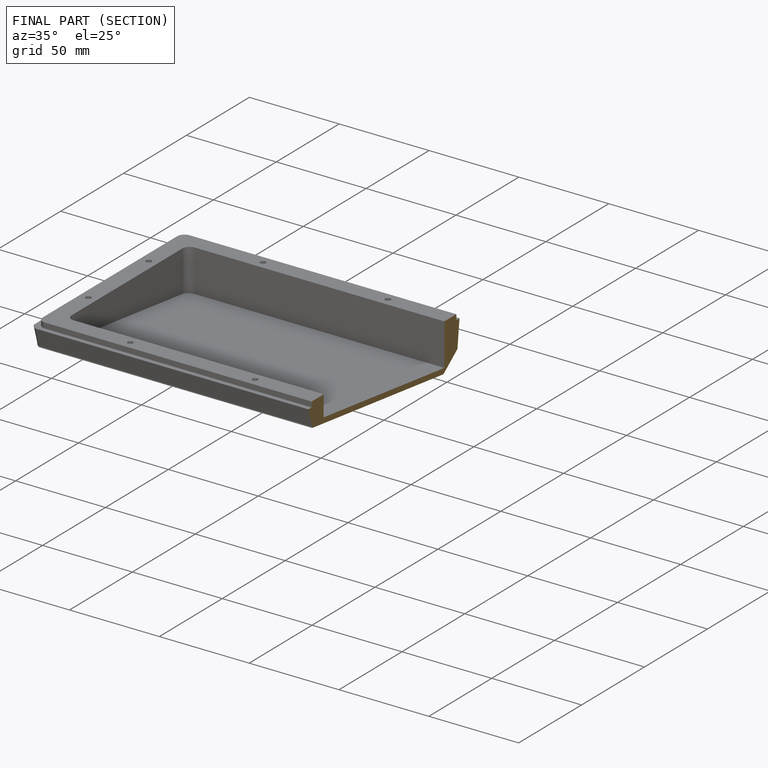
[diagram: finished part — half-section view (interior)]
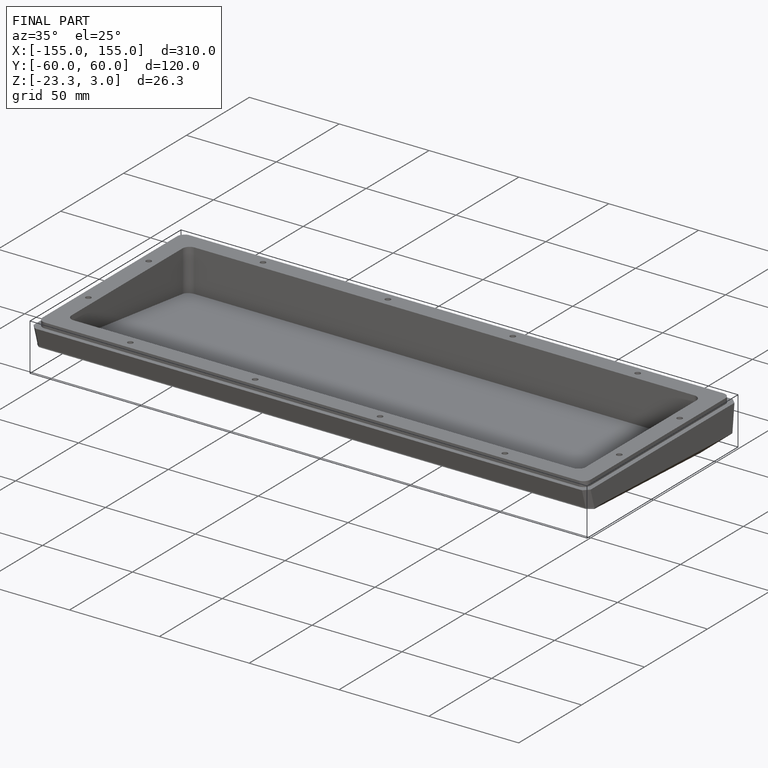
[diagram: finished part — iso view with bounding-box wireframe]
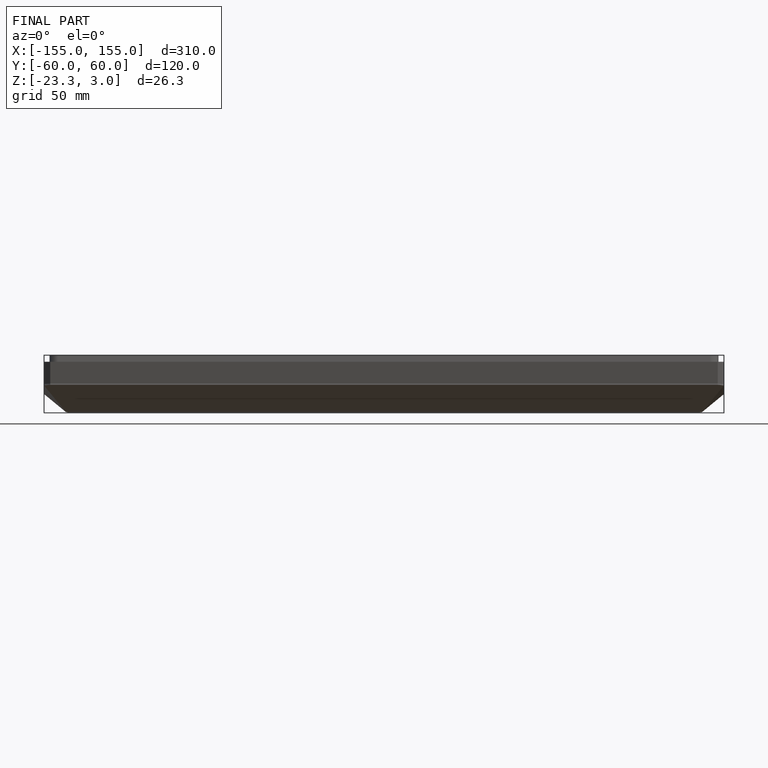
[diagram: finished part — front view with bounding-box wireframe]
